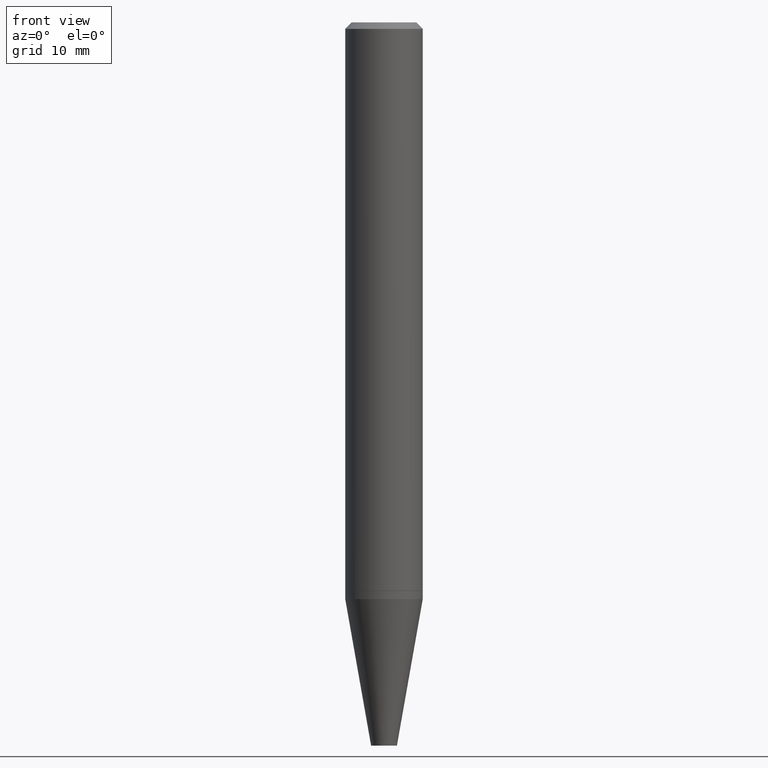
[diagram: clean part render]
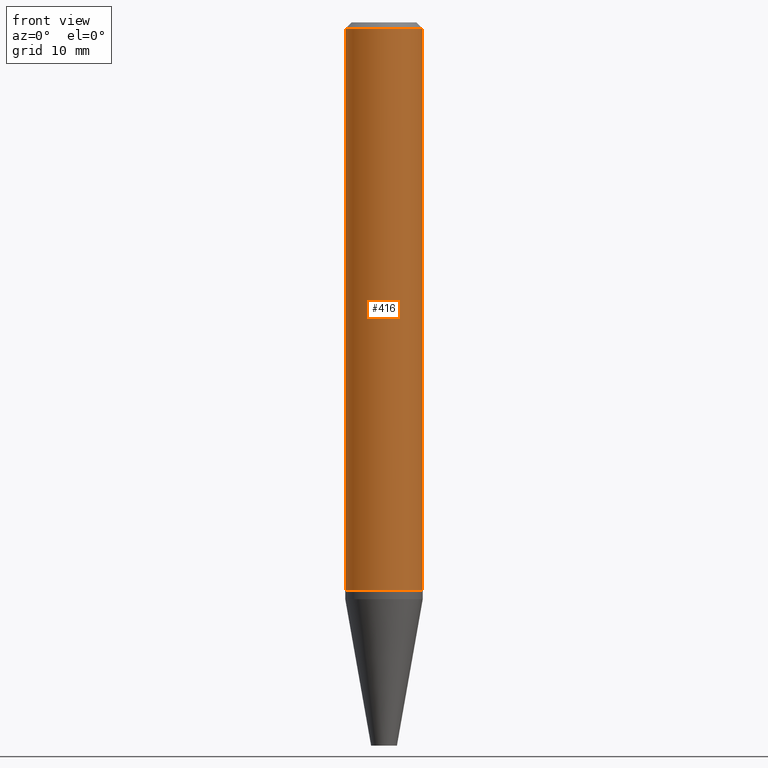
[diagram: same view with one face highlighted and labeled with its STEP entity id]
A machine part, front view. The second image highlights one B-rep face of the part: STEP entity #416.
In plain terms, the highlighted cylindrical surface (partial cylindrical patch) has radius 4.7625 mm, axis along (-0, 0, 1).
Its self-contained STEP definition (entity closure, byte-faithful):
#2 = AXIS2_PLACEMENT_3D ( 'NONE', #80, #145, #307 ) ;
#50 = ORIENTED_EDGE ( 'NONE', *, *, #170, .F. ) ;
#59 = AXIS2_PLACEMENT_3D ( 'NONE', #243, #207, #250 ) ;
#75 = VECTOR ( 'NONE', #273, 39.37007874015748143 ) ;
#78 = FACE_OUTER_BOUND ( 'NONE', #192, .T. ) ;
#80 = CARTESIAN_POINT ( 'NONE',  ( 7.642090019328561499E-31, -1.091087918388484350E-16, -0.03125000000000003469 ) ) ;
#89 = CARTESIAN_POINT ( 'NONE',  ( 0.1875000000000003886, -1.090913344321540415E-14, -2.749499999999999833 ) ) ;
#110 = LINE ( 'NONE', #383, #139 ) ;
#139 = VECTOR ( 'NONE', #363, 39.37007874015748143 ) ;
#145 = DIRECTION ( 'NONE',  ( -2.445468806185136597E-29, 3.491481338843145583E-15, 1.000000000000000000 ) ) ;
#153 = CIRCLE ( 'NONE', #2, 0.1875000000000000278 ) ;
#170 = EDGE_CURVE ( 'NONE', #415, #319, #110, .T. ) ;
#192 = EDGE_LOOP ( 'NONE', ( #50, #347, #296, #303 ) ) ;
#202 = EDGE_CURVE ( 'NONE', #316, #349, #344, .T. ) ;
#207 = DIRECTION ( 'NONE',  ( -2.445468806185136597E-29, 3.491481338843145583E-15, 1.000000000000000000 ) ) ;
#213 = CARTESIAN_POINT ( 'NONE',  ( 0.1875000000000000278, -1.418414293905023320E-15, -0.03125000000000003469 ) ) ;
#215 = EDGE_CURVE ( 'NONE', #319, #349, #153, .T. ) ;
#221 = EDGE_CURVE ( 'NONE', #415, #316, #237, .T. ) ;
#237 = CIRCLE ( 'NONE', #59, 0.1875000000000003886 ) ;
#241 = CARTESIAN_POINT ( 'NONE',  ( -0.1875000000000000278, -3.522200736943847330E-15, -0.03125000000000003469 ) ) ;
#243 = CARTESIAN_POINT ( 'NONE',  ( 6.723816482606031719E-29, -9.599827941149227567E-15, -2.749499999999999833 ) ) ;
#246 = AXIS2_PLACEMENT_3D ( 'NONE', #403, #308, #342 ) ;
#250 = DIRECTION ( 'NONE',  ( 1.000000000000000000, -6.982962677686269077E-15, 0.000000000000000000 ) ) ;
#273 = DIRECTION ( 'NONE',  ( -2.445468806185136877E-29, 3.491481338843145188E-15, 1.000000000000000000 ) ) ;
#274 = CARTESIAN_POINT ( 'NONE',  ( -0.1875000000000003886, -8.267560311599038141E-15, -2.749499999999999833 ) ) ;
#296 = ORIENTED_EDGE ( 'NONE', *, *, #202, .T. ) ;
#303 = ORIENTED_EDGE ( 'NONE', *, *, #215, .F. ) ;
#307 = DIRECTION ( 'NONE',  ( 1.000000000000000000, -6.982962677686265922E-15, 0.000000000000000000 ) ) ;
#308 = DIRECTION ( 'NONE',  ( -2.445468806185136597E-29, 3.491481338843145583E-15, 1.000000000000000000 ) ) ;
#316 = VERTEX_POINT ( 'NONE', #89 ) ;
#319 = VERTEX_POINT ( 'NONE', #241 ) ;
#342 = DIRECTION ( 'NONE',  ( 1.000000000000000000, -6.982962677686265922E-15, 4.876176775795935793E-29 ) ) ;
#344 = LINE ( 'NONE', #407, #75 ) ;
#347 = ORIENTED_EDGE ( 'NONE', *, *, #221, .T. ) ;
#349 = VERTEX_POINT ( 'NONE', #213 ) ;
#363 = DIRECTION ( 'NONE',  ( -2.445468806185136877E-29, 3.491481338843145188E-15, 1.000000000000000000 ) ) ;
#383 = CARTESIAN_POINT ( 'NONE',  ( -0.1875000000000001943, 1.332267629550189229E-15, -9.223003294227957800E-30 ) ) ;
#403 = CARTESIAN_POINT ( 'NONE',  ( 0.000000000000000000, 0.000000000000000000, 0.000000000000000000 ) ) ;
#407 = CARTESIAN_POINT ( 'NONE',  ( 0.1875000000000001943, -1.309305502066176192E-15, 9.142831454617389421E-30 ) ) ;
#408 = CYLINDRICAL_SURFACE ( 'NONE', #246, 0.1875000000000001943 ) ;
#415 = VERTEX_POINT ( 'NONE', #274 ) ;
#416 = ADVANCED_FACE ( 'NONE', ( #78 ), #408, .T. ) ;